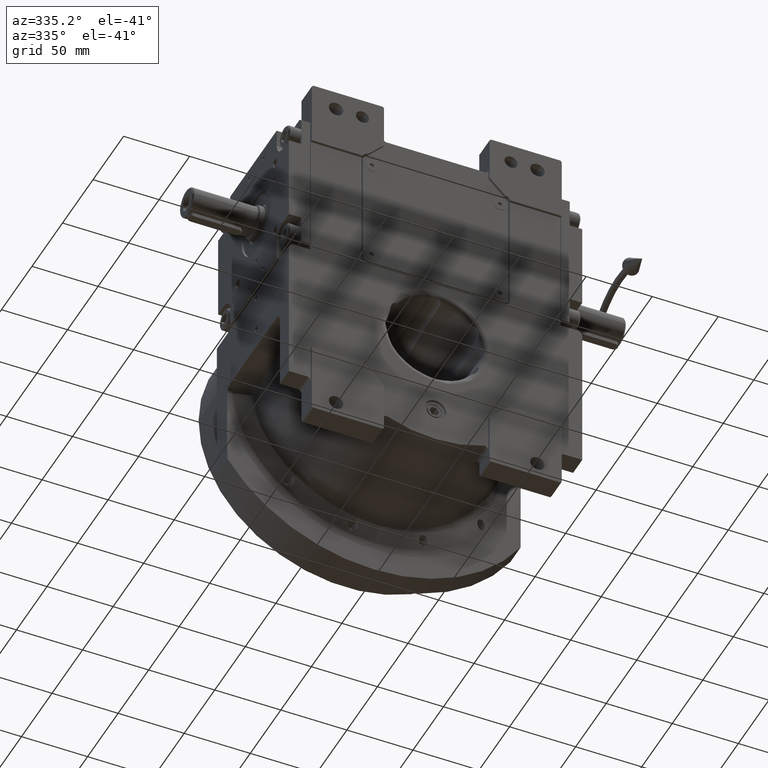
[diagram: clean part render]
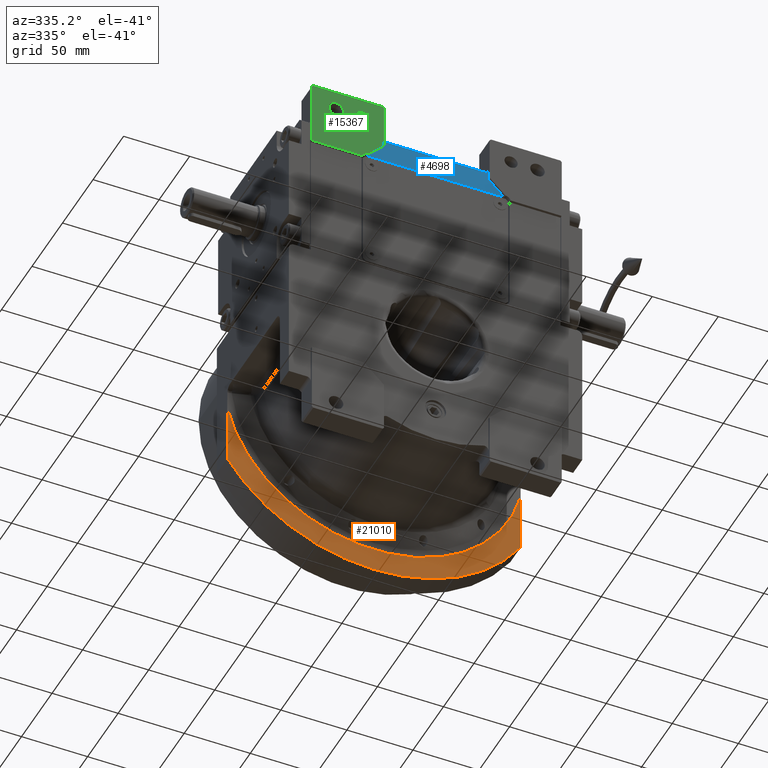
[diagram: same view with three faces highlighted in distinct colors, each labeled with its STEP entity id]
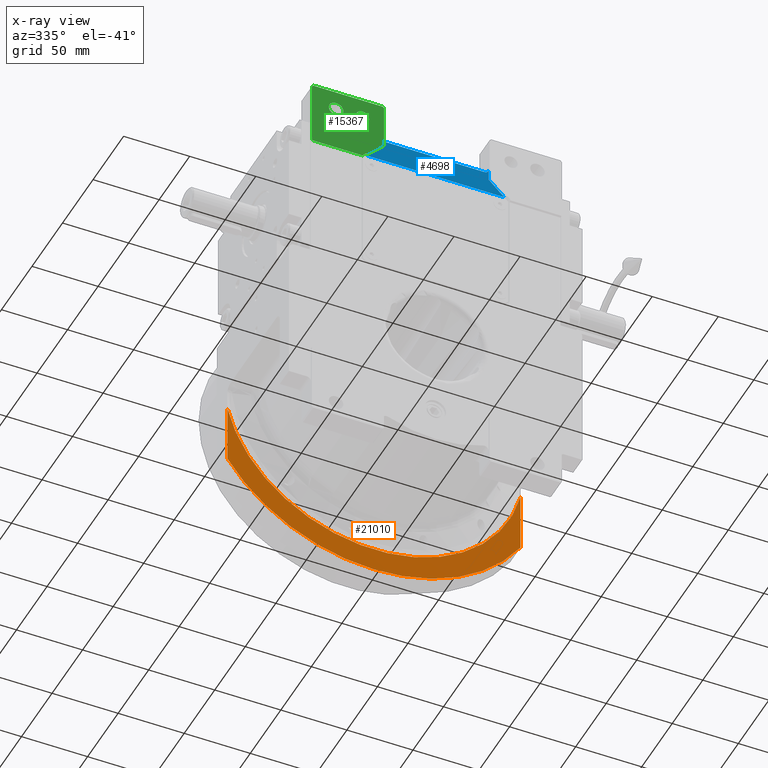
[diagram: x-ray of the same camera — body ghosted, the three highlighted faces saturated]
A machine part, auxiliary view with three faces highlighted in distinct colors.
The next image is the same camera in x-ray (body ghosted, the three faces saturated) — at least one of them is partly hidden behind the body in this view.
Their STEP definitions:

[orange] entity #21010 — the highlighted planar face has unit normal (0, -1, 0).
#1143 = VECTOR ( 'NONE', #19270, 1000.000000000000000 ) ;
#3926 = EDGE_CURVE ( 'NONE', #37911, #46857, #29933, .T. ) ;
#6813 = CARTESIAN_POINT ( 'NONE',  ( 111.0000000000000000, 47.50000000000000000, -71.43528539874399996 ) ) ;
#7326 = VERTEX_POINT ( 'NONE', #6813 ) ;
#10044 = AXIS2_PLACEMENT_3D ( 'NONE', #61083, #45175, #55876 ) ;
#10260 = CARTESIAN_POINT ( 'NONE',  ( 111.0000000000000000, 47.50000000000000000, -71.43528539874399996 ) ) ;
#12123 = VECTOR ( 'NONE', #46150, 1000.000000000000000 ) ;
#14467 = CARTESIAN_POINT ( 'NONE',  ( -111.0000000000000000, 47.50000000000000000, -71.43528539874399996 ) ) ;
#14476 = CIRCLE ( 'NONE', #10044, 131.9999999999999716 ) ;
#18307 = EDGE_LOOP ( 'NONE', ( #22030, #39381, #48972, #21592 ) ) ;
#18913 = EDGE_CURVE ( 'NONE', #46857, #52654, #34943, .T. ) ;
#19270 = DIRECTION ( 'NONE',  ( 6.180107079730629528E-16, 0.000000000000000000, 1.000000000000000000 ) ) ;
#19534 = CARTESIAN_POINT ( 'NONE',  ( -111.0000000000000000, 47.50000000000000000, -71.43528539874399996 ) ) ;
#21010 = ADVANCED_FACE ( 'NONE', ( #30671 ), #25149, .T. ) ;
#21592 = ORIENTED_EDGE ( 'NONE', *, *, #18913, .F. ) ;
#22030 = ORIENTED_EDGE ( 'NONE', *, *, #3926, .F. ) ;
#24831 = CARTESIAN_POINT ( 'NONE',  ( 0.000000000000000000, 47.50000000000000000, 0.000000000000000000 ) ) ;
#25149 = PLANE ( 'NONE',  #52085 ) ;
#25249 = CARTESIAN_POINT ( 'NONE',  ( -111.0000000000000000, 47.50000000000000000, -25.44626115736729588 ) ) ;
#27708 = EDGE_CURVE ( 'NONE', #7326, #52654, #67967, .T. ) ;
#29933 = LINE ( 'NONE', #19534, #12123 ) ;
#30671 = FACE_OUTER_BOUND ( 'NONE', #18307, .T. ) ;
#34943 = CIRCLE ( 'NONE', #63608, 113.8793756871230158 ) ;
#37911 = VERTEX_POINT ( 'NONE', #14467 ) ;
#39381 = ORIENTED_EDGE ( 'NONE', *, *, #52917, .F. ) ;
#40851 = DIRECTION ( 'NONE',  ( 0.000000000000000000, -1.000000000000000000, 0.000000000000000000 ) ) ;
#45175 = DIRECTION ( 'NONE',  ( 0.000000000000000000, 1.000000000000000000, 0.000000000000000000 ) ) ;
#46150 = DIRECTION ( 'NONE',  ( 0.000000000000000000, 0.000000000000000000, 1.000000000000000000 ) ) ;
#46857 = VERTEX_POINT ( 'NONE', #25249 ) ;
#47760 = CARTESIAN_POINT ( 'NONE',  ( -9.947598300641398816E-14, 47.50000000000000000, -5.684341886080798963E-14 ) ) ;
#48972 = ORIENTED_EDGE ( 'NONE', *, *, #27708, .T. ) ;
#51555 = DIRECTION ( 'NONE',  ( -0.9747155648707268583, 0.000000000000000000, -0.2234492506112734644 ) ) ;
#52085 = AXIS2_PLACEMENT_3D ( 'NONE', #24831, #66955, #67295 ) ;
#52654 = VERTEX_POINT ( 'NONE', #58007 ) ;
#52917 = EDGE_CURVE ( 'NONE', #7326, #37911, #14476, .T. ) ;
#55876 = DIRECTION ( 'NONE',  ( 0.8409090909090902732, 0.000000000000000000, -0.5411764045359401809 ) ) ;
#58007 = CARTESIAN_POINT ( 'NONE',  ( 111.0000000000000000, 47.50000000000000000, -25.44626115736659955 ) ) ;
#61083 = CARTESIAN_POINT ( 'NONE',  ( 0.000000000000000000, 47.50000000000000000, 4.263256414560599853E-14 ) ) ;
#63608 = AXIS2_PLACEMENT_3D ( 'NONE', #47760, #40851, #51555 ) ;
#66955 = DIRECTION ( 'NONE',  ( 0.000000000000000000, -1.000000000000000000, 0.000000000000000000 ) ) ;
#67295 = DIRECTION ( 'NONE',  ( 0.000000000000000000, 0.000000000000000000, 1.000000000000000000 ) ) ;
#67967 = LINE ( 'NONE', #10260, #1143 ) ;

[blue] entity #4698 — the highlighted planar face has unit normal (0, 1, 0).
#55 = CARTESIAN_POINT ( 'NONE',  ( -36.99999999999929656, -53.50000000000000000, 166.5000000000000000 ) ) ;
#486 = CARTESIAN_POINT ( 'NONE',  ( -51.99999999999930367, -53.50000000000000000, 146.0000000000000000 ) ) ;
#879 = CARTESIAN_POINT ( 'NONE',  ( -36.99999999999929656, -53.50000000000000000, 163.5000000000000000 ) ) ;
#1229 = VECTOR ( 'NONE', #37787, 1000.000000000000000 ) ;
#2574 = VERTEX_POINT ( 'NONE', #36495 ) ;
#2925 = DIRECTION ( 'NONE',  ( 0.7071067811865480168, 0.000000000000000000, -0.7071067811865470176 ) ) ;
#3522 = DIRECTION ( 'NONE',  ( 0.000000000000000000, 1.000000000000000000, 0.000000000000000000 ) ) ;
#4185 = DIRECTION ( 'NONE',  ( 1.000000000000000000, 0.000000000000000000, 0.000000000000000000 ) ) ;
#4698 = ADVANCED_FACE ( 'NONE', ( #33597 ), #54678, .F. ) ;
#5213 = DIRECTION ( 'NONE',  ( 0.000000000000000000, 0.000000000000000000, -1.000000000000000000 ) ) ;
#8210 = CARTESIAN_POINT ( 'NONE',  ( 36.99999999999934630, -53.50000000000000000, 163.5000000000000000 ) ) ;
#8349 = DIRECTION ( 'NONE',  ( -0.000000000000000000, 1.000000000000000000, 0.000000000000000000 ) ) ;
#9119 = VERTEX_POINT ( 'NONE', #33003 ) ;
#9215 = EDGE_CURVE ( 'NONE', #63930, #9119, #28201, .T. ) ;
#9345 = LINE ( 'NONE', #66029, #17768 ) ;
#10816 = VERTEX_POINT ( 'NONE', #879 ) ;
#12709 = EDGE_CURVE ( 'NONE', #54501, #13522, #21559, .T. ) ;
#13522 = VERTEX_POINT ( 'NONE', #56500 ) ;
#14180 = AXIS2_PLACEMENT_3D ( 'NONE', #62147, #8349, #34614 ) ;
#15385 = CARTESIAN_POINT ( 'NONE',  ( -39.99999999999929656, -53.50000000000000000, 166.5000000000000000 ) ) ;
#17768 = VECTOR ( 'NONE', #50830, 1000.000000000000000 ) ;
#19958 = CIRCLE ( 'NONE', #28835, 3.000000000000002665 ) ;
#20091 = DIRECTION ( 'NONE',  ( 0.000000000000000000, 1.000000000000000000, 0.000000000000000000 ) ) ;
#21559 = LINE ( 'NONE', #486, #1229 ) ;
#21602 = LINE ( 'NONE', #36440, #42836 ) ;
#21628 = EDGE_CURVE ( 'NONE', #2574, #63930, #9345, .T. ) ;
#24619 = CARTESIAN_POINT ( 'NONE',  ( 36.99999999999934630, -53.50000000000000000, 166.5000000000000000 ) ) ;
#26005 = CARTESIAN_POINT ( 'NONE',  ( 51.99999999999930367, -53.50000000000000000, 146.0000000000000000 ) ) ;
#27804 = VECTOR ( 'NONE', #40201, 1000.000000000000000 ) ;
#28201 = LINE ( 'NONE', #33708, #31576 ) ;
#28835 = AXIS2_PLACEMENT_3D ( 'NONE', #24619, #3522, #4185 ) ;
#31559 = ORIENTED_EDGE ( 'NONE', *, *, #52048, .T. ) ;
#31576 = VECTOR ( 'NONE', #2925, 1000.000000000000000 ) ;
#32504 = ORIENTED_EDGE ( 'NONE', *, *, #58290, .F. ) ;
#33003 = CARTESIAN_POINT ( 'NONE',  ( 52.00000000000000000, -53.50000000000000000, 146.0000000000000000 ) ) ;
#33597 = FACE_OUTER_BOUND ( 'NONE', #46079, .T. ) ;
#33708 = CARTESIAN_POINT ( 'NONE',  ( 39.99999999999929656, -53.50000000000000000, 158.0000000000000000 ) ) ;
#34614 = DIRECTION ( 'NONE',  ( 1.000000000000000000, 0.000000000000000000, 0.000000000000000000 ) ) ;
#36440 = CARTESIAN_POINT ( 'NONE',  ( -39.99999999999929656, -53.50000000000000000, 158.0000000000000000 ) ) ;
#36495 = CARTESIAN_POINT ( 'NONE',  ( 39.99999999999929656, -53.50000000000000000, 166.5000000000000000 ) ) ;
#36644 = CARTESIAN_POINT ( 'NONE',  ( 39.99999999999929656, -53.50000000000000000, 158.0000000000000000 ) ) ;
#37321 = CIRCLE ( 'NONE', #63820, 3.000000000000002665 ) ;
#37787 = DIRECTION ( 'NONE',  ( 0.7071067811865480168, 0.000000000000000000, 0.7071067811865470176 ) ) ;
#38877 = ORIENTED_EDGE ( 'NONE', *, *, #21628, .F. ) ;
#40035 = ORIENTED_EDGE ( 'NONE', *, *, #63559, .F. ) ;
#40201 = DIRECTION ( 'NONE',  ( 1.000000000000000000, 0.000000000000000000, 0.000000000000000000 ) ) ;
#42836 = VECTOR ( 'NONE', #57541, 1000.000000000000000 ) ;
#45152 = EDGE_CURVE ( 'NONE', #10816, #65667, #47068, .T. ) ;
#46079 = EDGE_LOOP ( 'NONE', ( #60046, #38877, #31559, #61380, #49010, #40035, #46816, #32504 ) ) ;
#46816 = ORIENTED_EDGE ( 'NONE', *, *, #12709, .F. ) ;
#47068 = LINE ( 'NONE', #57080, #27804 ) ;
#49010 = ORIENTED_EDGE ( 'NONE', *, *, #66358, .T. ) ;
#49892 = VERTEX_POINT ( 'NONE', #15385 ) ;
#50830 = DIRECTION ( 'NONE',  ( 0.000000000000000000, 0.000000000000000000, -1.000000000000000000 ) ) ;
#52048 = EDGE_CURVE ( 'NONE', #2574, #65667, #19958, .T. ) ;
#52269 = LINE ( 'NONE', #26005, #59046 ) ;
#54501 = VERTEX_POINT ( 'NONE', #59210 ) ;
#54678 = PLANE ( 'NONE',  #14180 ) ;
#56500 = CARTESIAN_POINT ( 'NONE',  ( -39.99999999999929656, -53.50000000000000000, 158.0000000000000000 ) ) ;
#57080 = CARTESIAN_POINT ( 'NONE',  ( -36.99999999999929656, -53.50000000000000000, 163.5000000000000000 ) ) ;
#57428 = DIRECTION ( 'NONE',  ( -1.000000000000000000, 0.000000000000000000, 0.000000000000000000 ) ) ;
#57541 = DIRECTION ( 'NONE',  ( 0.000000000000000000, 0.000000000000000000, 1.000000000000000000 ) ) ;
#58290 = EDGE_CURVE ( 'NONE', #9119, #54501, #52269, .T. ) ;
#59046 = VECTOR ( 'NONE', #57428, 1000.000000000000000 ) ;
#59210 = CARTESIAN_POINT ( 'NONE',  ( -51.99999999999940314, -53.50000000000000000, 146.0000000000000000 ) ) ;
#60046 = ORIENTED_EDGE ( 'NONE', *, *, #9215, .F. ) ;
#61380 = ORIENTED_EDGE ( 'NONE', *, *, #45152, .F. ) ;
#62147 = CARTESIAN_POINT ( 'NONE',  ( 0.000000000000000000, -53.50000000000000000, 0.000000000000000000 ) ) ;
#63559 = EDGE_CURVE ( 'NONE', #13522, #49892, #21602, .T. ) ;
#63820 = AXIS2_PLACEMENT_3D ( 'NONE', #55, #20091, #5213 ) ;
#63930 = VERTEX_POINT ( 'NONE', #36644 ) ;
#65667 = VERTEX_POINT ( 'NONE', #8210 ) ;
#66029 = CARTESIAN_POINT ( 'NONE',  ( 39.99999999999929656, -53.50000000000000000, 166.5000000000000000 ) ) ;
#66358 = EDGE_CURVE ( 'NONE', #10816, #49892, #37321, .T. ) ;

[green] entity #15367 — the highlighted planar face has unit normal (0, -1, 0).
#1096 = CARTESIAN_POINT ( 'NONE',  ( -94.50000000000000000, -55.50000000000000000, 143.0000000000000000 ) ) ;
#1929 = CARTESIAN_POINT ( 'NONE',  ( -94.50000000000000000, -55.50000000000000000, 192.0000000000000000 ) ) ;
#2184 = CARTESIAN_POINT ( 'NONE',  ( -81.69999999999998863, -55.50000000000000000, 178.0000000000000000 ) ) ;
#2273 = CIRCLE ( 'NONE', #55248, 5.000000000000004441 ) ;
#2353 = CARTESIAN_POINT ( 'NONE',  ( -39.99999999999929656, -55.50000000000000000, 192.0000000000000000 ) ) ;
#2512 = AXIS2_PLACEMENT_3D ( 'NONE', #14100, #35198, #19633 ) ;
#2601 = LINE ( 'NONE', #19483, #34653 ) ;
#3057 = EDGE_CURVE ( 'NONE', #66258, #32682, #27490, .T. ) ;
#3946 = DIRECTION ( 'NONE',  ( 0.7071067811865480168, 0.000000000000000000, 0.7071067811865470176 ) ) ;
#4666 = DIRECTION ( 'NONE',  ( 0.000000000000000000, 1.000000000000000000, 0.000000000000000000 ) ) ;
#5172 = ORIENTED_EDGE ( 'NONE', *, *, #19488, .T. ) ;
#5340 = AXIS2_PLACEMENT_3D ( 'NONE', #15346, #4666, #41634 ) ;
#5866 = VERTEX_POINT ( 'NONE', #36598 ) ;
#6005 = DIRECTION ( 'NONE',  ( 0.000000000000000000, 1.000000000000000000, 0.000000000000000000 ) ) ;
#6063 = VERTEX_POINT ( 'NONE', #53478 ) ;
#6093 = DIRECTION ( 'NONE',  ( -1.000000000000000000, 0.000000000000000000, 0.000000000000000000 ) ) ;
#6423 = DIRECTION ( 'NONE',  ( 0.000000000000000000, 0.000000000000000000, 1.000000000000000000 ) ) ;
#8046 = ORIENTED_EDGE ( 'NONE', *, *, #11707, .T. ) ;
#8287 = LINE ( 'NONE', #8947, #38925 ) ;
#8947 = CARTESIAN_POINT ( 'NONE',  ( -94.50000000000000000, -55.50000000000000000, 192.0000000000000000 ) ) ;
#9224 = ORIENTED_EDGE ( 'NONE', *, *, #31518, .T. ) ;
#9781 = VECTOR ( 'NONE', #10375, 1000.000000000000000 ) ;
#9939 = ORIENTED_EDGE ( 'NONE', *, *, #35664, .T. ) ;
#10375 = DIRECTION ( 'NONE',  ( 0.000000000000000000, 0.000000000000000000, 1.000000000000000000 ) ) ;
#11707 = EDGE_CURVE ( 'NONE', #14764, #6063, #58700, .T. ) ;
#12164 = ORIENTED_EDGE ( 'NONE', *, *, #14090, .T. ) ;
#12518 = CARTESIAN_POINT ( 'NONE',  ( -56.20000000000000284, -55.50000000000000000, 183.0000000000000000 ) ) ;
#13452 = DIRECTION ( 'NONE',  ( 0.000000000000000000, 0.000000000000000000, -1.000000000000000000 ) ) ;
#14090 = EDGE_CURVE ( 'NONE', #54244, #5866, #8287, .T. ) ;
#14100 = CARTESIAN_POINT ( 'NONE',  ( 0.000000000000000000, -55.50000000000000000, 0.000000000000000000 ) ) ;
#14277 = EDGE_LOOP ( 'NONE', ( #64147, #9224, #12164, #48255, #15025, #9939, #45044, #8046 ) ) ;
#14477 = VECTOR ( 'NONE', #27603, 1000.000000000000114 ) ;
#14764 = VERTEX_POINT ( 'NONE', #61226 ) ;
#15025 = ORIENTED_EDGE ( 'NONE', *, *, #16136, .F. ) ;
#15346 = CARTESIAN_POINT ( 'NONE',  ( -56.20000000000000284, -55.50000000000000000, 178.0000000000000000 ) ) ;
#15367 = ADVANCED_FACE ( 'NONE', ( #40727, #68010, #36201 ), #46596, .T. ) ;
#16136 = EDGE_CURVE ( 'NONE', #64432, #39957, #34436, .T. ) ;
#17656 = DIRECTION ( 'NONE',  ( -0.7071067811865474617, 0.000000000000000000, -0.7071067811865474617 ) ) ;
#18481 = DIRECTION ( 'NONE',  ( 0.000000000000000000, 1.000000000000000000, 0.000000000000000000 ) ) ;
#18631 = CARTESIAN_POINT ( 'NONE',  ( -39.99999999999929656, -55.50000000000000000, 158.0000000000000000 ) ) ;
#19343 = EDGE_CURVE ( 'NONE', #6063, #36082, #63478, .T. ) ;
#19483 = CARTESIAN_POINT ( 'NONE',  ( -51.99999999999930367, -55.50000000000000000, 146.0000000000000000 ) ) ;
#19488 = EDGE_CURVE ( 'NONE', #51938, #51586, #2273, .T. ) ;
#19633 = DIRECTION ( 'NONE',  ( -1.000000000000000000, 0.000000000000000000, 0.000000000000000000 ) ) ;
#19711 = LINE ( 'NONE', #25599, #9781 ) ;
#20646 = CARTESIAN_POINT ( 'NONE',  ( -55.87298334620739837, -55.50000000000000000, 143.0000000000000000 ) ) ;
#20764 = VECTOR ( 'NONE', #17656, 1000.000000000000114 ) ;
#20861 = CARTESIAN_POINT ( 'NONE',  ( -76.20000000000000284, -55.50000000000000000, 178.0000000000000000 ) ) ;
#20915 = ORIENTED_EDGE ( 'NONE', *, *, #3057, .T. ) ;
#22171 = DIRECTION ( 'NONE',  ( 1.000000000000000000, 0.000000000000000000, 0.000000000000000000 ) ) ;
#23372 = CARTESIAN_POINT ( 'NONE',  ( -56.20000000000000284, -55.50000000000000000, 178.0000000000000000 ) ) ;
#23572 = CARTESIAN_POINT ( 'NONE',  ( -76.20000000000000284, -55.50000000000000000, 178.0000000000000000 ) ) ;
#25599 = CARTESIAN_POINT ( 'NONE',  ( -39.99999999999929656, -55.50000000000000000, 158.0000000000000000 ) ) ;
#25744 = DIRECTION ( 'NONE',  ( 1.000000000000000000, 0.000000000000000000, 0.000000000000000000 ) ) ;
#25907 = AXIS2_PLACEMENT_3D ( 'NONE', #20861, #6005, #25744 ) ;
#27490 = CIRCLE ( 'NONE', #42910, 5.500000000000005329 ) ;
#27603 = DIRECTION ( 'NONE',  ( -0.7071067811865474617, 0.000000000000000000, 0.7071067811865474617 ) ) ;
#27723 = LINE ( 'NONE', #1096, #64932 ) ;
#28079 = DIRECTION ( 'NONE',  ( 0.000000000000000000, 1.000000000000000000, 0.000000000000000000 ) ) ;
#29851 = VECTOR ( 'NONE', #6093, 1000.000000000000000 ) ;
#30718 = CIRCLE ( 'NONE', #5340, 5.000000000000004441 ) ;
#31518 = EDGE_CURVE ( 'NONE', #36082, #54244, #31534, .T. ) ;
#31534 = LINE ( 'NONE', #52602, #20764 ) ;
#31669 = EDGE_CURVE ( 'NONE', #5866, #39957, #27723, .T. ) ;
#32682 = VERTEX_POINT ( 'NONE', #50570 ) ;
#33943 = CARTESIAN_POINT ( 'NONE',  ( -93.50000000000000000, -55.50000000000000000, 193.0000000000000000 ) ) ;
#34436 = CIRCLE ( 'NONE', #49934, 4.000000000000003553 ) ;
#34653 = VECTOR ( 'NONE', #3946, 1000.000000000000000 ) ;
#35198 = DIRECTION ( 'NONE',  ( 0.000000000000000000, -1.000000000000000000, 0.000000000000000000 ) ) ;
#35629 = DIRECTION ( 'NONE',  ( 1.613292832658429083E-13, 0.000000000000000000, 1.000000000000000000 ) ) ;
#35664 = EDGE_CURVE ( 'NONE', #64432, #65270, #2601, .T. ) ;
#36082 = VERTEX_POINT ( 'NONE', #33943 ) ;
#36201 = FACE_OUTER_BOUND ( 'NONE', #14277, .T. ) ;
#36598 = CARTESIAN_POINT ( 'NONE',  ( -94.50000000000000000, -55.50000000000000000, 143.0000000000000000 ) ) ;
#36638 = ORIENTED_EDGE ( 'NONE', *, *, #62258, .T. ) ;
#37121 = EDGE_LOOP ( 'NONE', ( #5172, #36638 ) ) ;
#38925 = VECTOR ( 'NONE', #13452, 1000.000000000000000 ) ;
#39957 = VERTEX_POINT ( 'NONE', #20646 ) ;
#40727 = FACE_BOUND ( 'NONE', #37121, .T. ) ;
#41634 = DIRECTION ( 'NONE',  ( 0.000000000000000000, 0.000000000000000000, 1.000000000000000000 ) ) ;
#42910 = AXIS2_PLACEMENT_3D ( 'NONE', #23572, #28079, #43923 ) ;
#43923 = DIRECTION ( 'NONE',  ( -1.000000000000000000, 0.000000000000000000, 0.000000000000000000 ) ) ;
#45044 = ORIENTED_EDGE ( 'NONE', *, *, #62590, .T. ) ;
#46013 = DIRECTION ( 'NONE',  ( 0.000000000000000000, -1.000000000000000000, 0.000000000000000000 ) ) ;
#46596 = PLANE ( 'NONE',  #2512 ) ;
#48255 = ORIENTED_EDGE ( 'NONE', *, *, #31669, .T. ) ;
#49934 = AXIS2_PLACEMENT_3D ( 'NONE', #52891, #46013, #35629 ) ;
#50570 = CARTESIAN_POINT ( 'NONE',  ( -70.70000000000000284, -55.50000000000000000, 178.0000000000000000 ) ) ;
#51586 = VERTEX_POINT ( 'NONE', #66523 ) ;
#51938 = VERTEX_POINT ( 'NONE', #12518 ) ;
#52478 = EDGE_LOOP ( 'NONE', ( #64203, #20915 ) ) ;
#52602 = CARTESIAN_POINT ( 'NONE',  ( -93.50000000000000000, -55.50000000000000000, 193.0000000000000000 ) ) ;
#52891 = CARTESIAN_POINT ( 'NONE',  ( -52.00000000000000000, -55.50000000000000000, 142.0000000000000000 ) ) ;
#53478 = CARTESIAN_POINT ( 'NONE',  ( -40.99999999999930367, -55.50000000000000000, 193.0000000000000000 ) ) ;
#54244 = VERTEX_POINT ( 'NONE', #1929 ) ;
#55248 = AXIS2_PLACEMENT_3D ( 'NONE', #23372, #18481, #6423 ) ;
#56346 = EDGE_CURVE ( 'NONE', #32682, #66258, #60096, .T. ) ;
#58700 = LINE ( 'NONE', #2353, #14477 ) ;
#60096 = CIRCLE ( 'NONE', #25907, 5.500000000000005329 ) ;
#61226 = CARTESIAN_POINT ( 'NONE',  ( -39.99999999999929656, -55.50000000000000000, 192.0000000000000000 ) ) ;
#62258 = EDGE_CURVE ( 'NONE', #51586, #51938, #30718, .T. ) ;
#62590 = EDGE_CURVE ( 'NONE', #65270, #14764, #19711, .T. ) ;
#62773 = CARTESIAN_POINT ( 'NONE',  ( -40.99999999999930367, -55.50000000000000000, 193.0000000000000000 ) ) ;
#63478 = LINE ( 'NONE', #62773, #29851 ) ;
#64147 = ORIENTED_EDGE ( 'NONE', *, *, #19343, .T. ) ;
#64203 = ORIENTED_EDGE ( 'NONE', *, *, #56346, .T. ) ;
#64432 = VERTEX_POINT ( 'NONE', #67166 ) ;
#64932 = VECTOR ( 'NONE', #22171, 1000.000000000000000 ) ;
#65270 = VERTEX_POINT ( 'NONE', #18631 ) ;
#66258 = VERTEX_POINT ( 'NONE', #2184 ) ;
#66523 = CARTESIAN_POINT ( 'NONE',  ( -56.20000000000000284, -55.50000000000000000, 173.0000000000000000 ) ) ;
#67166 = CARTESIAN_POINT ( 'NONE',  ( -51.99999999999930367, -55.50000000000000000, 146.0000000000000000 ) ) ;
#68010 = FACE_BOUND ( 'NONE', #52478, .T. ) ;